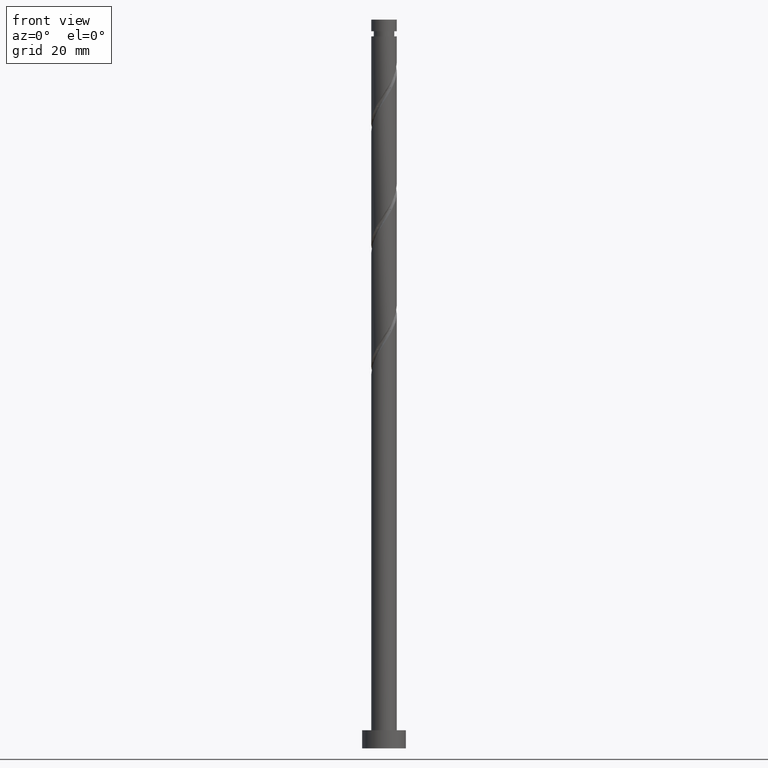
[diagram: clean part render]
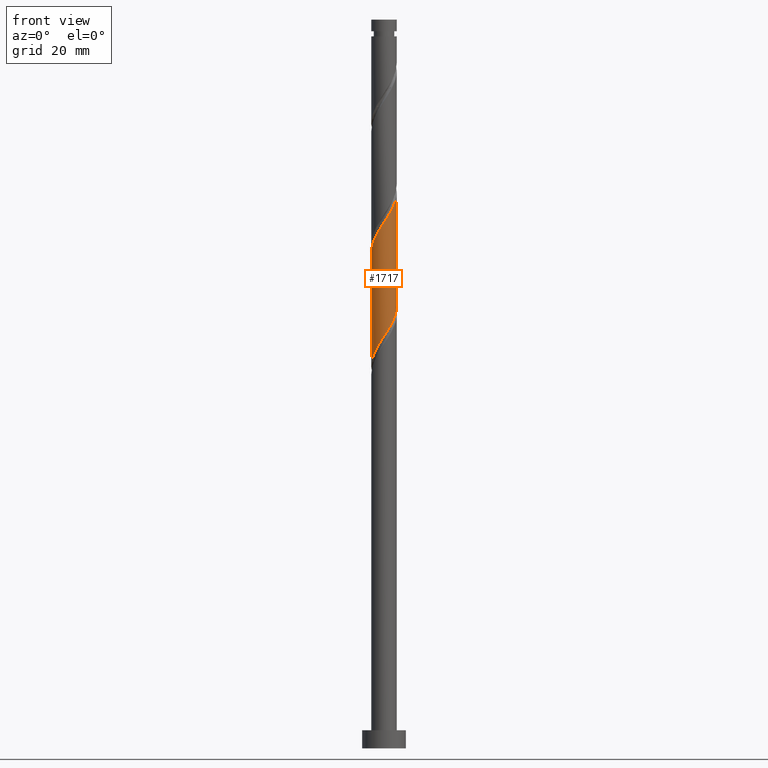
[diagram: same view with one face highlighted and labeled with its STEP entity id]
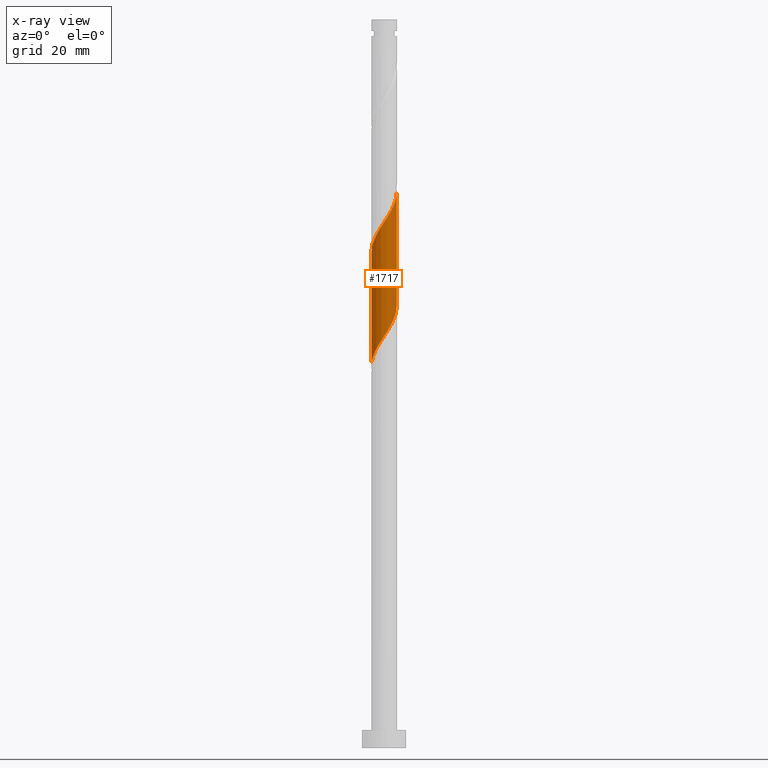
[diagram: x-ray of the same camera — body ghosted, the highlighted face saturated]
A machine part, front view. The second image highlights one B-rep face of the part: STEP entity #1717.
The next image is the same camera in x-ray: the body ghosted, the highlighted face saturated — about 0% of this face is hidden behind the body in this view.
In plain terms, the highlighted cylindrical surface (edge-blend (fillet) strip) has radius 3.5 mm, axis along (-0, -0, -1).
Its self-contained STEP definition (entity closure, byte-faithful):
#43 = EDGE_CURVE ( 'NONE', #1611, #297, #1145, .T. ) ;
#50 = CARTESIAN_POINT ( 'NONE',  ( -0.6749041013849230719, -3.465086739234110702, 143.3030626307798343 ) ) ;
#82 = CARTESIAN_POINT ( 'NONE',  ( 3.500000000000000888, -0.3517632353407277868, 120.9165362501340582 ) ) ;
#103 = CARTESIAN_POINT ( 'NONE',  ( 2.917869914251322250, -1.932882604688401562, 149.5530626307800048 ) ) ;
#137 = CARTESIAN_POINT ( 'NONE',  ( 1.548737742842088982, -3.172338736701778128, 115.5252848530021055 ) ) ;
#162 = CARTESIAN_POINT ( 'NONE',  ( -2.917869914251319141, -1.932882604688396455, 107.8863959641132482 ) ) ;
#191 = CARTESIAN_POINT ( 'NONE',  ( -2.622221531993310872, -2.318179077886496575, 139.8308404085577479 ) ) ;
#212 = CARTESIAN_POINT ( 'NONE',  ( -1.548737742842092979, -3.172338736701781237, 141.9141737418910338 ) ) ;
#226 = CARTESIAN_POINT ( 'NONE',  ( 3.500000000000003997, -0.1075968308018628306, 152.4929989542083888 ) ) ;
#255 = CARTESIAN_POINT ( 'NONE',  ( 3.338305193185780340, -1.148059272699406108, 119.6919515196688195 ) ) ;
#264 = CARTESIAN_POINT ( 'NONE',  ( -1.148059272699404554, -3.338305193185781672, 111.3586181863355051 ) ) ;
#292 = CARTESIAN_POINT ( 'NONE',  ( 1.932882604688394901, -2.917869914251320029, 116.2197292974466052 ) ) ;
#297 = VERTEX_POINT ( 'NONE', #574 ) ;
#306 = VERTEX_POINT ( 'NONE', #731 ) ;
#321 = CARTESIAN_POINT ( 'NONE',  ( -3.338305193185786557, -1.148059272699403000, 137.7475070752243766 ) ) ;
#345 = VECTOR ( 'NONE', #1150, 1000.000000000000000 ) ;
#367 = DIRECTION ( 'NONE',  ( -1.000000000000000000, 0.000000000000000000, 0.000000000000000000 ) ) ;
#383 = CARTESIAN_POINT ( 'NONE',  ( 1.972957063972127889, -2.927415597451915374, 147.4697292974465199 ) ) ;
#408 = CARTESIAN_POINT ( 'NONE',  ( -3.318712737967942861, -1.111820922113504695, 106.4975070752243766 ) ) ;
#418 = ORIENTED_EDGE ( 'NONE', *, *, #665, .T. ) ;
#483 = CARTESIAN_POINT ( 'NONE',  ( -3.500000000000003109, -0.3517632353407287860, 136.5229223447590812 ) ) ;
#538 = CARTESIAN_POINT ( 'NONE',  ( -0.2449231392498684989, -3.521694806814218648, 112.7475070752243624 ) ) ;
#560 = CARTESIAN_POINT ( 'NONE',  ( 3.429999999999999272, -0.6964912059746357631, 120.3863959641132624 ) ) ;
#574 = CARTESIAN_POINT ( 'NONE',  ( 3.500000000000000000, 4.516042901973274995E-15, 121.4499626193233155 ) ) ;
#582 = AXIS2_PLACEMENT_3D ( 'NONE', #783, #1290, #367 ) ;
#605 = DIRECTION ( 'NONE',  ( -0.000000000000000000, -0.000000000000000000, -1.000000000000000000 ) ) ;
#608 = CARTESIAN_POINT ( 'NONE',  ( -2.317027466534706814, -2.663401091800862375, 140.5252848530021197 ) ) ;
#665 = EDGE_CURVE ( 'NONE', #822, #306, #1551, .T. ) ;
#667 = CARTESIAN_POINT ( 'NONE',  ( 3.493390773024166229, -0.2149904810675305200, 152.3308404085578047 ) ) ;
#686 = CARTESIAN_POINT ( 'NONE',  ( 1.111820922113504473, -3.318712737967942861, 114.8308404085576910 ) ) ;
#691 = EDGE_CURVE ( 'NONE', #822, #1611, #905, .T. ) ;
#715 = CARTESIAN_POINT ( 'NONE',  ( 2.317027466534702818, -2.663401091800861931, 116.9141737418910338 ) ) ;
#724 = EDGE_CURVE ( 'NONE', #297, #306, #1037, .T. ) ;
#731 = CARTESIAN_POINT ( 'NONE',  ( -3.500000000000000000, 4.411366410867935127E-15, 104.7832959526566299 ) ) ;
#744 = CARTESIAN_POINT ( 'NONE',  ( -1.932882604688400674, -2.917869914251323582, 141.2197292974466052 ) ) ;
#783 = CARTESIAN_POINT ( 'NONE',  ( 0.000000000000000000, 0.000000000000000000, 200.0000000000000000 ) ) ;
#798 = CARTESIAN_POINT ( 'NONE',  ( 3.465086739234110258, -0.6749041013849248483, 151.6363959641132340 ) ) ;
#814 = CARTESIAN_POINT ( 'NONE',  ( -1.972957063972128777, -2.927415597451910045, 109.9697292974465768 ) ) ;
#822 = VERTEX_POINT ( 'NONE', #1263 ) ;
#829 = CARTESIAN_POINT ( 'NONE',  ( -3.172338736701778128, -1.548737742842088982, 107.1919515196688337 ) ) ;
#869 = CARTESIAN_POINT ( 'NONE',  ( -3.132860395318850522, -1.560508168335767110, 138.4419515196687769 ) ) ;
#878 = CARTESIAN_POINT ( 'NONE',  ( 1.148059272699403000, -3.338305193185786557, 146.0808404085576342 ) ) ;
#885 = CARTESIAN_POINT ( 'NONE',  ( 0.2449231392498658899, -3.521694806814221756, 144.6919515196687769 ) ) ;
#893 = CYLINDRICAL_SURFACE ( 'NONE', #582, 3.500000000000000000 ) ;
#905 =( BOUNDED_CURVE ( )  B_SPLINE_CURVE ( 2, ( #1266, #483, #1006, #321, #869, #1396, #191, #608, #744, #212, #1560, #50, #1140, #885, #1680, #878, #1408, #383, #1588, #924, #103, #1581, #1453, #798, #667, #226, #1602 ),
 .UNSPECIFIED., .F., .T. ) 
 B_SPLINE_CURVE_WITH_KNOTS ( ( 3, 2, 2, 2, 2, 2, 2, 2, 2, 2, 2, 2, 2, 3 ),
 ( 0.3045317669814464057, 0.3125000000000000000, 0.3229166666666666297, 0.3333333333333333703, 0.3437500000000000000, 0.3541666666666666297, 0.3645833333333333703, 0.3750000000000000000, 0.3854166666666666297, 0.3958333333333333703, 0.4062500000000000000, 0.4166666666666666297, 0.4270833333333333703, 0.4295317669814462391 ),
 .UNSPECIFIED. ) 
 CURVE ( )  GEOMETRIC_REPRESENTATION_ITEM ( )  RATIONAL_B_SPLINE_CURVE ( ( 0.9062941362546482749, 0.9031415850403528012, 0.9090909090909279344, 0.9013135103398465242, 0.9090909090909279344, 0.9013135103398465242, 0.9090909090909279344, 0.9013135103398465242, 0.9090909090909279344, 0.9013135103398465242, 0.9090909090909279344, 0.9013135103398465242, 0.9090909090909279344, 0.9013135103398465242, 0.9090909090909279344, 0.9013135103398465242, 0.9090909090909279344, 0.9013135103398465242, 0.9090909090909279344, 0.9013135103398465242, 0.9090909090909279344, 0.9013135103398465242, 0.9090909090909279344, 0.9013135103398465242, 0.9090909090909279344, 0.9072628343904217685, 0.9062941362546482749 ) ) 
 REPRESENTATION_ITEM ( '' )  );
#924 = CARTESIAN_POINT ( 'NONE',  ( 2.663401091800862375, -2.317027466534706814, 148.8586181863354341 ) ) ;
#938 = VECTOR ( 'NONE', #605, 1000.000000000000000 ) ;
#945 = CARTESIAN_POINT ( 'NONE',  ( -3.500000000000000000, 4.411366410867935127E-15, 104.7832959526566299 ) ) ;
#956 = CARTESIAN_POINT ( 'NONE',  ( 0.6749041013849192971, -3.465086739234107593, 114.1363959641132340 ) ) ;
#965 = CARTESIAN_POINT ( 'NONE',  ( -3.465086739234107149, -0.6749041013849204074, 105.8030626307799480 ) ) ;
#974 = CARTESIAN_POINT ( 'NONE',  ( -3.500000000000000888, -0.1075968308018490083, 104.9464596406847932 ) ) ;
#990 = CARTESIAN_POINT ( 'NONE',  ( 3.500000000000000000, 4.286263797015736595E-16, 200.0000000000000000 ) ) ;
#995 = ORIENTED_EDGE ( 'NONE', *, *, #691, .F. ) ;
#1006 = CARTESIAN_POINT ( 'NONE',  ( -3.430000000000004601, -0.6964912059746356521, 137.0530626307799764 ) ) ;
#1037 =( BOUNDED_CURVE ( )  B_SPLINE_CURVE ( 2, ( #1292, #82, #560, #255, #1469, #1642, #1622, #715, #292, #137, #686, #956, #1336, #538, #1612, #264, #1742, #814, #1365, #1328, #162, #829, #408, #965, #1631, #974, #945 ),
 .UNSPECIFIED., .F., .T. ) 
 B_SPLINE_CURVE_WITH_KNOTS ( ( 3, 2, 2, 2, 2, 2, 2, 2, 2, 2, 2, 2, 2, 3 ),
 ( 0.8045317669814463502, 0.8125000000000000000, 0.8229166666666666297, 0.8333333333333333703, 0.8437500000000000000, 0.8541666666666666297, 0.8645833333333333703, 0.8750000000000000000, 0.8854166666666666297, 0.8958333333333333703, 0.9062500000000000000, 0.9166666666666666297, 0.9270833333333333703, 0.9295317669814464612 ),
 .UNSPECIFIED. ) 
 CURVE ( )  GEOMETRIC_REPRESENTATION_ITEM ( )  RATIONAL_B_SPLINE_CURVE ( ( 0.9062941362546426127, 0.9031415850403469170, 0.9090909090909222723, 0.9013135103398406400, 0.9090909090909222723, 0.9013135103398406400, 0.9090909090909222723, 0.9013135103398406400, 0.9090909090909222723, 0.9013135103398406400, 0.9090909090909222723, 0.9013135103398406400, 0.9090909090909222723, 0.9013135103398406400, 0.9090909090909222723, 0.9013135103398406400, 0.9090909090909222723, 0.9013135103398406400, 0.9090909090909222723, 0.9013135103398406400, 0.9090909090909222723, 0.9013135103398406400, 0.9090909090909222723, 0.9013135103398406400, 0.9090909090909222723, 0.9072628343904158843, 0.9062941362546423907 ) ) 
 REPRESENTATION_ITEM ( '' )  );
#1140 = CARTESIAN_POINT ( 'NONE',  ( -0.2149904810675286326, -3.493390773024166229, 143.9975070752243482 ) ) ;
#1145 = LINE ( 'NONE', #990, #938 ) ;
#1150 = DIRECTION ( 'NONE',  ( -0.000000000000000000, -0.000000000000000000, -1.000000000000000000 ) ) ;
#1175 = CARTESIAN_POINT ( 'NONE',  ( 3.500000000000004441, 5.532900244139408950E-16, 152.6561626422365237 ) ) ;
#1263 = CARTESIAN_POINT ( 'NONE',  ( -3.500000000000004441, -2.736542553182464498E-15, 135.9894959755698380 ) ) ;
#1266 = CARTESIAN_POINT ( 'NONE',  ( -3.500000000000004441, -2.736542553182464498E-15, 135.9894959755698380 ) ) ;
#1290 = DIRECTION ( 'NONE',  ( -0.000000000000000000, -0.000000000000000000, -1.000000000000000000 ) ) ;
#1292 = CARTESIAN_POINT ( 'NONE',  ( 3.500000000000000444, 4.516042901973274995E-15, 121.4499626193233155 ) ) ;
#1318 = EDGE_LOOP ( 'NONE', ( #1750, #995, #418, #1426 ) ) ;
#1328 = CARTESIAN_POINT ( 'NONE',  ( -2.663401091800862375, -2.317027466534702818, 108.5808404085577337 ) ) ;
#1336 = CARTESIAN_POINT ( 'NONE',  ( 0.2149904810675253575, -3.493390773024163121, 113.4419515196688053 ) ) ;
#1365 = CARTESIAN_POINT ( 'NONE',  ( -2.318179077886495687, -2.622221531993305987, 109.2752848530021481 ) ) ;
#1396 = CARTESIAN_POINT ( 'NONE',  ( -2.927415597451914930, -1.972957063972128777, 139.1363959641132340 ) ) ;
#1408 = CARTESIAN_POINT ( 'NONE',  ( 1.560508168335765777, -3.132860395318851410, 146.7752848530021481 ) ) ;
#1426 = ORIENTED_EDGE ( 'NONE', *, *, #724, .F. ) ;
#1453 = CARTESIAN_POINT ( 'NONE',  ( 3.318712737967946413, -1.111820922113509580, 150.9419515196688053 ) ) ;
#1469 = CARTESIAN_POINT ( 'NONE',  ( 3.132860395318844748, -1.560508168335767332, 118.9975070752243624 ) ) ;
#1551 = LINE ( 'NONE', #1690, #345 ) ;
#1560 = CARTESIAN_POINT ( 'NONE',  ( -1.111820922113509580, -3.318712737967946413, 142.6086181863354909 ) ) ;
#1567 = FACE_OUTER_BOUND ( 'NONE', #1318, .T. ) ;
#1581 = CARTESIAN_POINT ( 'NONE',  ( 3.172338736701780793, -1.548737742842093201, 150.2475070752242914 ) ) ;
#1588 = CARTESIAN_POINT ( 'NONE',  ( 2.318179077886497019, -2.622221531993311316, 148.1641737418910338 ) ) ;
#1602 = CARTESIAN_POINT ( 'NONE',  ( 3.500000000000004441, 5.532900244139408950E-16, 152.6561626422365237 ) ) ;
#1611 = VERTEX_POINT ( 'NONE', #1175 ) ;
#1612 = CARTESIAN_POINT ( 'NONE',  ( -0.6964912059746356521, -3.429999999999999272, 112.0530626307799054 ) ) ;
#1622 = CARTESIAN_POINT ( 'NONE',  ( 2.622221531993305987, -2.318179077886495687, 117.6086181863354909 ) ) ;
#1631 = CARTESIAN_POINT ( 'NONE',  ( -3.493390773024163121, -0.2149904810675264399, 105.1086181863354625 ) ) ;
#1642 = CARTESIAN_POINT ( 'NONE',  ( 2.927415597451909157, -1.972957063972129665, 118.3030626307799338 ) ) ;
#1680 = CARTESIAN_POINT ( 'NONE',  ( 0.6964912059746353190, -3.430000000000004601, 145.3863959641132624 ) ) ;
#1690 = CARTESIAN_POINT ( 'NONE',  ( -3.500000000000000000, 0.000000000000000000, 200.0000000000000000 ) ) ;
#1717 = ADVANCED_FACE ( 'NONE', ( #1567 ), #893, .T. ) ;
#1742 = CARTESIAN_POINT ( 'NONE',  ( -1.560508168335765999, -3.132860395318845192, 110.6641737418910338 ) ) ;
#1750 = ORIENTED_EDGE ( 'NONE', *, *, #43, .F. ) ;